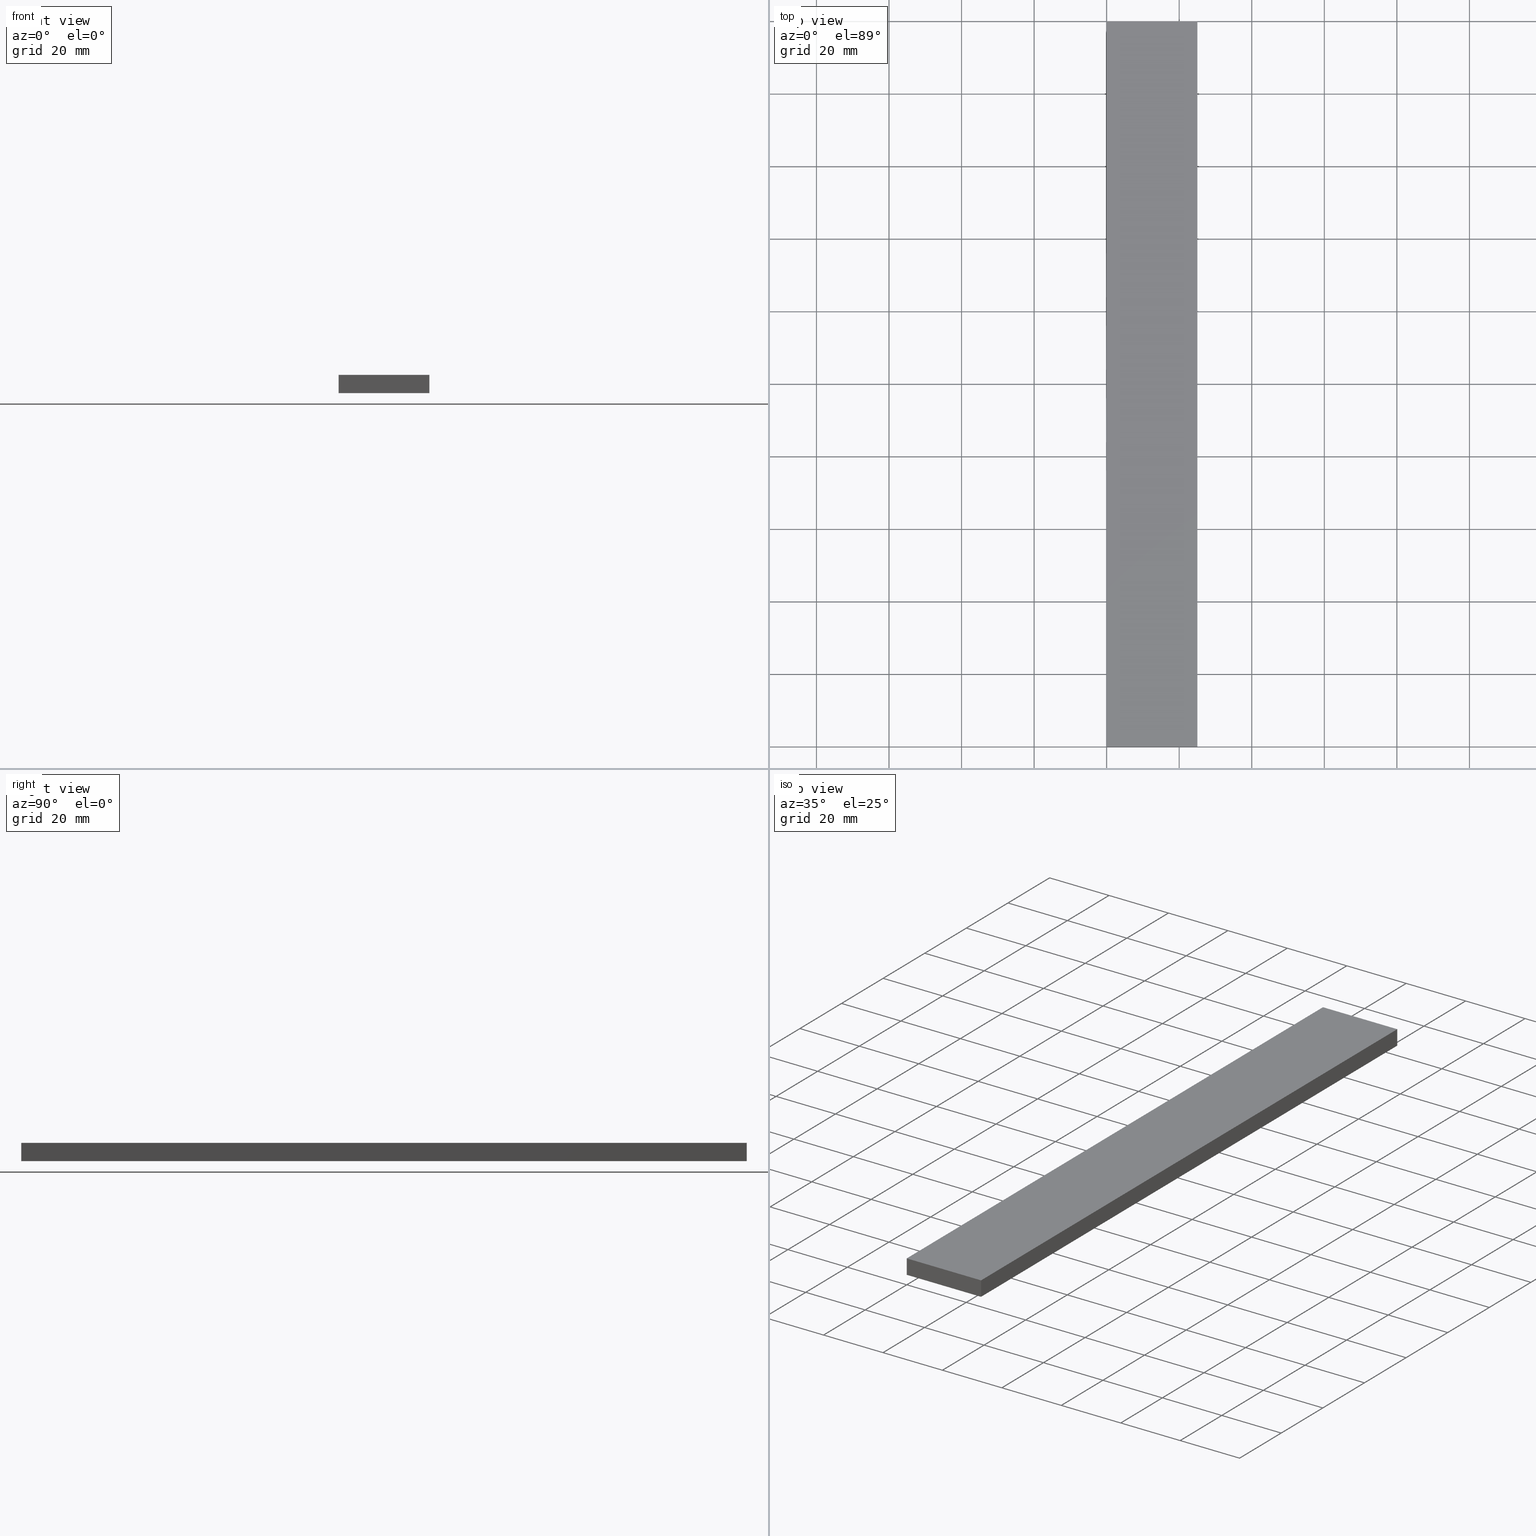
[diagram: canonical four-view strip — front | top / right | iso, engineering-drawing reading convention]
A machine part, canonical four-view strip (front | top / right | iso — engineering-drawing reading convention). The complete STEP part file that produces these views, byte-faithful:
ISO-10303-21;
HEADER;
FILE_DESCRIPTION (( 'STEP AP214' ),
    '1' );
FILE_NAME ('TM_339_5_25.STEP',
    '2016-05-09T04:24:25',
    ( '' ),
    ( '' ),
    'SwSTEP 2.0',
    'SolidWorks 2015',
    '' );
FILE_SCHEMA (( 'AUTOMOTIVE_DESIGN' ));
ENDSEC;

DATA;
#1 = ADVANCED_FACE ( 'NONE', ( #101 ), #121, .T. ) ;
#2 = CARTESIAN_POINT ( 'NONE',  ( 25.00000000000000000, 200.0000000000000000, 0.0000000000000000000 ) ) ;
#3 = AXIS2_PLACEMENT_3D ( 'NONE', #53, #66, #193 ) ;
#4 = CARTESIAN_POINT ( 'NONE',  ( 0.0000000000000000000, 0.0000000000000000000, 0.0000000000000000000 ) ) ;
#5 = ORIENTED_EDGE ( 'NONE', *, *, #182, .T. ) ;
#6 = PLANE ( 'NONE',  #61 ) ;
#7 = AXIS2_PLACEMENT_3D ( 'NONE', #88, #212, #160 ) ;
#8 = ORIENTED_EDGE ( 'NONE', *, *, #178, .F. ) ;
#9 = CARTESIAN_POINT ( 'NONE',  ( 25.00000000000000000, 0.0000000000000000000, 0.0000000000000000000 ) ) ;
#10 = AXIS2_PLACEMENT_3D ( 'NONE', #23, #123, #25 ) ;
#11 = DIRECTION ( 'NONE',  ( -0.0000000000000000000, -0.0000000000000000000, 1.000000000000000000 ) ) ;
#12 = ORIENTED_EDGE ( 'NONE', *, *, #167, .T. ) ;
#13 = PLANE ( 'NONE',  #3 ) ;
#14 = UNCERTAINTY_MEASURE_WITH_UNIT (LENGTH_MEASURE( 1.000000000000000100E-005 ), #97, 'distance_accuracy_value', 'NONE');
#15 = ADVANCED_FACE ( 'NONE', ( #192 ), #211, .T. ) ;
#16 = EDGE_LOOP ( 'NONE', ( #57, #162, #205, #134 ) ) ;
#17 = ADVANCED_FACE ( 'NONE', ( #237 ), #13, .F. ) ;
#18 = FILL_AREA_STYLE_COLOUR ( '', #204 ) ;
#19 =( GEOMETRIC_REPRESENTATION_CONTEXT ( 3 ) GLOBAL_UNCERTAINTY_ASSIGNED_CONTEXT ( ( #36 ) ) GLOBAL_UNIT_ASSIGNED_CONTEXT ( ( #171, #79, #168 ) ) REPRESENTATION_CONTEXT ( 'NONE', 'WORKASPACE' ) );
#20 = PRODUCT_DEFINITION_SHAPE ( 'NONE', 'NONE',  #70 ) ;
#21 = ORIENTED_EDGE ( 'NONE', *, *, #167, .F. ) ;
#22 = CARTESIAN_POINT ( 'NONE',  ( 0.0000000000000000000, 1000.000000000000000, 0.0000000000000000000 ) ) ;
#23 = CARTESIAN_POINT ( 'NONE',  ( 0.0000000000000000000, 0.0000000000000000000, 0.0000000000000000000 ) ) ;
#24 = ADVANCED_FACE ( 'NONE', ( #146 ), #87, .T. ) ;
#25 = DIRECTION ( 'NONE',  ( 1.000000000000000000, 0.0000000000000000000, 0.0000000000000000000 ) ) ;
#26 = APPLICATION_PROTOCOL_DEFINITION ( 'draft international standard', 'automotive_design', 1998, #49 ) ;
#27 = ADVANCED_FACE ( 'NONE', ( #96 ), #6, .T. ) ;
#28 = LINE ( 'NONE', #4, #216 ) ;
#29 = EDGE_CURVE ( 'NONE', #218, #98, #231, .T. ) ;
#30 = CARTESIAN_POINT ( 'NONE',  ( 0.0000000000000000000, 200.0000000000000000, 0.0000000000000000000 ) ) ;
#31 = APPLICATION_CONTEXT ( 'automotive_design' ) ;
#32 = ORIENTED_EDGE ( 'NONE', *, *, #29, .F. ) ;
#33 = UNCERTAINTY_MEASURE_WITH_UNIT (LENGTH_MEASURE( 1.000000000000000100E-005 ), #236, 'distance_accuracy_value', 'NONE');
#34 = CARTESIAN_POINT ( 'NONE',  ( 0.0000000000000000000, 200.0000000000000000, 5.000000000000000000 ) ) ;
#35 = VECTOR ( 'NONE', #11, 1000.000000000000000 ) ;
#36 = UNCERTAINTY_MEASURE_WITH_UNIT (LENGTH_MEASURE( 1.000000000000000100E-005 ), #171, 'distance_accuracy_value', 'NONE');
#37 = AXIS2_PLACEMENT_3D ( 'NONE', #82, #217, #197 ) ;
#38 = DIRECTION ( 'NONE',  ( 1.000000000000000000, 0.0000000000000000000, 0.0000000000000000000 ) ) ;
#39 =( NAMED_UNIT ( * ) PLANE_ANGLE_UNIT ( ) SI_UNIT ( $, .RADIAN. ) );
#40 = VECTOR ( 'NONE', #106, 1000.000000000000000 ) ;
#41 = EDGE_CURVE ( 'NONE', #60, #203, #47, .T. ) ;
#42 = SURFACE_STYLE_FILL_AREA ( #108 ) ;
#43 = ORIENTED_EDGE ( 'NONE', *, *, #120, .T. ) ;
#44 = EDGE_CURVE ( 'NONE', #213, #60, #188, .T. ) ;
#45 = CARTESIAN_POINT ( 'NONE',  ( 0.0000000000000000000, 200.0000000000000000, 0.0000000000000000000 ) ) ;
#46 = CARTESIAN_POINT ( 'NONE',  ( 0.0000000000000000000, 1000.000000000000000, 5.000000000000000000 ) ) ;
#47 = LINE ( 'NONE', #176, #144 ) ;
#48 = CARTESIAN_POINT ( 'NONE',  ( 0.0000000000000000000, 0.0000000000000000000, 5.000000000000000000 ) ) ;
#49 = APPLICATION_CONTEXT ( 'automotive_design' ) ;
#50 = SURFACE_STYLE_FILL_AREA ( #74 ) ;
#51 = CARTESIAN_POINT ( 'NONE',  ( 0.0000000000000000000, 0.0000000000000000000, 0.0000000000000000000 ) ) ;
#52 = PRODUCT_DEFINITION ( 'UNKNOWN', '', #116, #118 ) ;
#53 = CARTESIAN_POINT ( 'NONE',  ( 0.0000000000000000000, 0.0000000000000000000, 0.0000000000000000000 ) ) ;
#54 = LINE ( 'NONE', #209, #35 ) ;
#55 = DIRECTION ( 'NONE',  ( 1.000000000000000000, -0.0000000000000000000, -0.0000000000000000000 ) ) ;
#56 = DIRECTION ( 'NONE',  ( 1.000000000000000000, 0.0000000000000000000, 0.0000000000000000000 ) ) ;
#57 = ORIENTED_EDGE ( 'NONE', *, *, #59, .F. ) ;
#58 = PRODUCT_DEFINITION_SHAPE ( 'NONE', 'NONE',  #52 ) ;
#59 = EDGE_CURVE ( 'NONE', #202, #218, #92, .T. ) ;
#60 = VERTEX_POINT ( 'NONE', #183 ) ;
#61 = AXIS2_PLACEMENT_3D ( 'NONE', #45, #206, #114 ) ;
#62 = EDGE_LOOP ( 'NONE', ( #150, #165, #190, #67 ) ) ;
#63 = CARTESIAN_POINT ( 'NONE',  ( 0.0000000000000000000, 200.0000000000000000, 0.0000000000000000000 ) ) ;
#64 = CARTESIAN_POINT ( 'NONE',  ( 25.00000000000000000, 1000.000000000000000, 0.0000000000000000000 ) ) ;
#65 = EDGE_CURVE ( 'NONE', #218, #142, #54, .T. ) ;
#66 = DIRECTION ( 'NONE',  ( -0.0000000000000000000, 1.000000000000000000, 0.0000000000000000000 ) ) ;
#67 = ORIENTED_EDGE ( 'NONE', *, *, #95, .T. ) ;
#68 = MECHANICAL_DESIGN_GEOMETRIC_PRESENTATION_REPRESENTATION (  '', ( #154 ), #200 ) ;
#69 = DIRECTION ( 'NONE',  ( 0.0000000000000000000, -1.000000000000000000, 0.0000000000000000000 ) ) ;
#70 = PRODUCT_DEFINITION ( 'UNKNOWN', '', #85, #133 ) ;
#71 = VECTOR ( 'NONE', #174, 1000.000000000000000 ) ;
#72 = ORIENTED_EDGE ( 'NONE', *, *, #182, .F. ) ;
#73 = ADVANCED_BREP_SHAPE_REPRESENTATION ( '', ( #226, #109 ), #93 ) ;
#74 = FILL_AREA_STYLE ('',( #18 ) ) ;
#75 = PRESENTATION_STYLE_ASSIGNMENT (( #143 ) ) ;
#76 = VECTOR ( 'NONE', #112, 1000.000000000000000 ) ;
#77 = EDGE_LOOP ( 'NONE', ( #8, #32, #238, #5 ) ) ;
#78 = AXIS2_PLACEMENT_3D ( 'NONE', #46, #179, #126 ) ;
#79 =( NAMED_UNIT ( * ) PLANE_ANGLE_UNIT ( ) SI_UNIT ( $, .RADIAN. ) );
#80 = APPLICATION_PROTOCOL_DEFINITION ( 'draft international standard', 'automotive_design', 1998, #159 ) ;
#81 = VECTOR ( 'NONE', #125, 1000.000000000000000 ) ;
#82 = CARTESIAN_POINT ( 'NONE',  ( 0.0000000000000000000, 0.0000000000000000000, 0.0000000000000000000 ) ) ;
#83 = DIRECTION ( 'NONE',  ( -0.0000000000000000000, -0.0000000000000000000, 1.000000000000000000 ) ) ;
#84 = ITEM_DEFINED_TRANSFORMATION ( 'NONE', 'NONE', #10,  #109 ) ;
#85 = PRODUCT_DEFINITION_FORMATION_WITH_SPECIFIED_SOURCE ( 'ANY', '', #196, .NOT_KNOWN. ) ;
#86 = EDGE_LOOP ( 'NONE', ( #21, #72, #43, #186 ) ) ;
#87 = PLANE ( 'NONE',  #78 ) ;
#88 = CARTESIAN_POINT ( 'NONE',  ( 0.0000000000000000000, 1000.000000000000000, 0.0000000000000000000 ) ) ;
#89 = APPLICATION_PROTOCOL_DEFINITION ( 'draft international standard', 'automotive_design', 1998, #113 ) ;
#90 = SHAPE_REPRESENTATION_RELATIONSHIP ( 'NONE' , 'NONE' ,  #135, #73 ) ;
#91 = CARTESIAN_POINT ( 'NONE',  ( 25.00000000000000000, 1000.000000000000000, 0.0000000000000000000 ) ) ;
#92 = LINE ( 'NONE', #63, #180 ) ;
#93 =( GEOMETRIC_REPRESENTATION_CONTEXT ( 3 ) GLOBAL_UNCERTAINTY_ASSIGNED_CONTEXT ( ( #207 ) ) GLOBAL_UNIT_ASSIGNED_CONTEXT ( ( #151, #138, #220 ) ) REPRESENTATION_CONTEXT ( 'NONE', 'WORKASPACE' ) );
#94 = VECTOR ( 'NONE', #83, 1000.000000000000000 ) ;
#95 = EDGE_CURVE ( 'NONE', #202, #203, #225, .T. ) ;
#96 = FACE_OUTER_BOUND ( 'NONE', #16, .T. ) ;
#97 =( LENGTH_UNIT ( ) NAMED_UNIT ( * ) SI_UNIT ( .MILLI., .METRE. ) );
#98 = VERTEX_POINT ( 'NONE', #9 ) ;
#99 = PRODUCT_DEFINITION_SHAPE ( 'NONE', 'NONE',  #239 ) ;
#100 = PRODUCT_RELATED_PRODUCT_CATEGORY ( 'part', '', ( #196 ) ) ;
#101 = FACE_OUTER_BOUND ( 'NONE', #77, .T. ) ;
#102 = STYLED_ITEM ( 'NONE', ( #158 ), #73 ) ;
#103 = CARTESIAN_POINT ( 'NONE',  ( 25.00000000000000000, 200.0000000000000000, 5.000000000000000000 ) ) ;
#104 = CARTESIAN_POINT ( 'NONE',  ( 25.00000000000000000, 1000.000000000000000, 5.000000000000000000 ) ) ;
#105 =( REPRESENTATION_RELATIONSHIP ('NONE','NONE', #131, #135 ) REPRESENTATION_RELATIONSHIP_WITH_TRANSFORMATION ( #84 )SHAPE_REPRESENTATION_RELATIONSHIP( ) );
#106 = DIRECTION ( 'NONE',  ( 0.0000000000000000000, -1.000000000000000000, 0.0000000000000000000 ) ) ;
#107 = ORIENTED_EDGE ( 'NONE', *, *, #178, .T. ) ;
#108 = FILL_AREA_STYLE ('',( #147 ) ) ;
#109 = AXIS2_PLACEMENT_3D ( 'NONE', #166, #187, #38 ) ;
#110 = AXIS2_PLACEMENT_3D ( 'NONE', #104, #148, #56 ) ;
#111 = ORIENTED_EDGE ( 'NONE', *, *, #155, .T. ) ;
#112 = DIRECTION ( 'NONE',  ( -1.000000000000000000, -0.0000000000000000000, -0.0000000000000000000 ) ) ;
#113 = APPLICATION_CONTEXT ( 'automotive_design' ) ;
#114 = DIRECTION ( 'NONE',  ( 1.000000000000000000, 0.0000000000000000000, 0.0000000000000000000 ) ) ;
#115 = CARTESIAN_POINT ( 'NONE',  ( 0.0000000000000000000, 200.0000000000000000, 5.000000000000000000 ) ) ;
#116 = PRODUCT_DEFINITION_FORMATION_WITH_SPECIFIED_SOURCE ( 'ANY', '', #177, .NOT_KNOWN. ) ;
#117 = EDGE_LOOP ( 'NONE', ( #111, #107, #12, #127 ) ) ;
#118 = PRODUCT_DEFINITION_CONTEXT ( 'detailed design', #49, 'design' ) ;
#119 = CONTEXT_DEPENDENT_SHAPE_REPRESENTATION ( #105, #99 ) ;
#120 = EDGE_CURVE ( 'NONE', #142, #213, #139, .T. ) ;
#121 = PLANE ( 'NONE',  #163 ) ;
#122 = ORIENTED_EDGE ( 'NONE', *, *, #155, .F. ) ;
#123 = DIRECTION ( 'NONE',  ( 0.0000000000000000000, 0.0000000000000000000, 1.000000000000000000 ) ) ;
#124 = DIRECTION ( 'NONE',  ( 0.0000000000000000000, 0.0000000000000000000, 1.000000000000000000 ) ) ;
#125 = DIRECTION ( 'NONE',  ( 0.0000000000000000000, -1.000000000000000000, 0.0000000000000000000 ) ) ;
#126 = DIRECTION ( 'NONE',  ( 0.0000000000000000000, 0.0000000000000000000, 1.000000000000000000 ) ) ;
#127 = ORIENTED_EDGE ( 'NONE', *, *, #41, .T. ) ;
#128 = DIRECTION ( 'NONE',  ( -0.0000000000000000000, -0.0000000000000000000, -1.000000000000000000 ) ) ;
#129 = VECTOR ( 'NONE', #170, 1000.000000000000000 ) ;
#130 = CARTESIAN_POINT ( 'NONE',  ( 25.00000000000000000, 0.0000000000000000000, 0.0000000000000000000 ) ) ;
#131 = SHAPE_REPRESENTATION ( 'TM_339_5_25', ( #37, #10 ), #19 ) ;
#132 = SHAPE_DEFINITION_REPRESENTATION ( #58, #135 ) ;
#133 = PRODUCT_DEFINITION_CONTEXT ( 'detailed design', #159, 'design' ) ;
#134 = ORIENTED_EDGE ( 'NONE', *, *, #65, .F. ) ;
#135 = SHAPE_REPRESENTATION ( 'rubber foam', ( #109 ), #93 ) ;
#136 = CARTESIAN_POINT ( 'NONE',  ( 25.00000000000000000, 0.0000000000000000000, 5.000000000000000000 ) ) ;
#137 = FACE_OUTER_BOUND ( 'NONE', #86, .T. ) ;
#138 =( NAMED_UNIT ( * ) PLANE_ANGLE_UNIT ( ) SI_UNIT ( $, .RADIAN. ) );
#139 = LINE ( 'NONE', #115, #129 ) ;
#140 = SURFACE_STYLE_USAGE ( .BOTH. , #227 ) ;
#141 = LINE ( 'NONE', #157, #71 ) ;
#142 = VERTEX_POINT ( 'NONE', #103 ) ;
#143 = SURFACE_STYLE_USAGE ( .BOTH. , #215 ) ;
#144 = VECTOR ( 'NONE', #128, 1000.000000000000000 ) ;
#145 = DIRECTION ( 'NONE',  ( 0.0000000000000000000, 0.0000000000000000000, -1.000000000000000000 ) ) ;
#146 = FACE_OUTER_BOUND ( 'NONE', #62, .T. ) ;
#147 = FILL_AREA_STYLE_COLOUR ( '', #184 ) ;
#148 = DIRECTION ( 'NONE',  ( 0.0000000000000000000, 0.0000000000000000000, 1.000000000000000000 ) ) ;
#149 =( NAMED_UNIT ( * ) SI_UNIT ( $, .STERADIAN. ) SOLID_ANGLE_UNIT ( ) );
#150 = ORIENTED_EDGE ( 'NONE', *, *, #41, .F. ) ;
#151 =( LENGTH_UNIT ( ) NAMED_UNIT ( * ) SI_UNIT ( .MILLI., .METRE. ) );
#152 =( NAMED_UNIT ( * ) PLANE_ANGLE_UNIT ( ) SI_UNIT ( $, .RADIAN. ) );
#153 = EDGE_LOOP ( 'NONE', ( #122, #195, #198, #156 ) ) ;
#154 = STYLED_ITEM ( 'NONE', ( #75 ), #226 ) ;
#155 = EDGE_CURVE ( 'NONE', #203, #98, #28, .T. ) ;
#156 = ORIENTED_EDGE ( 'NONE', *, *, #29, .T. ) ;
#157 = CARTESIAN_POINT ( 'NONE',  ( 25.00000000000000000, 1000.000000000000000, 5.000000000000000000 ) ) ;
#158 = PRESENTATION_STYLE_ASSIGNMENT (( #140 ) ) ;
#159 = APPLICATION_CONTEXT ( 'automotive_design' ) ;
#160 = DIRECTION ( 'NONE',  ( -1.000000000000000000, 0.0000000000000000000, 0.0000000000000000000 ) ) ;
#161 = CARTESIAN_POINT ( 'NONE',  ( 0.0000000000000000000, 0.0000000000000000000, 0.0000000000000000000 ) ) ;
#162 = ORIENTED_EDGE ( 'NONE', *, *, #214, .F. ) ;
#163 = AXIS2_PLACEMENT_3D ( 'NONE', #64, #229, #145 ) ;
#164 = PRODUCT_RELATED_PRODUCT_CATEGORY ( 'part', '', ( #177 ) ) ;
#165 = ORIENTED_EDGE ( 'NONE', *, *, #44, .F. ) ;
#166 = CARTESIAN_POINT ( 'NONE',  ( 0.0000000000000000000, 0.0000000000000000000, 0.0000000000000000000 ) ) ;
#167 = EDGE_CURVE ( 'NONE', #228, #60, #221, .T. ) ;
#168 =( NAMED_UNIT ( * ) SI_UNIT ( $, .STERADIAN. ) SOLID_ANGLE_UNIT ( ) );
#169 = PRESENTATION_LAYER_ASSIGNMENT (  '', '', ( #154 ) ) ;
#170 = DIRECTION ( 'NONE',  ( -1.000000000000000000, -0.0000000000000000000, -0.0000000000000000000 ) ) ;
#171 =( LENGTH_UNIT ( ) NAMED_UNIT ( * ) SI_UNIT ( .MILLI., .METRE. ) );
#172 = PRODUCT_CONTEXT ( 'NONE', #113, 'mechanical' ) ;
#173 = LINE ( 'NONE', #130, #94 ) ;
#174 = DIRECTION ( 'NONE',  ( 0.0000000000000000000, -1.000000000000000000, 0.0000000000000000000 ) ) ;
#175 = PRESENTATION_LAYER_ASSIGNMENT (  '', '', ( #102 ) ) ;
#176 = CARTESIAN_POINT ( 'NONE',  ( 0.0000000000000000000, 0.0000000000000000000, 0.0000000000000000000 ) ) ;
#177 = PRODUCT ( 'rubber foam', 'rubber foam', '', ( #194 ) ) ;
#178 = EDGE_CURVE ( 'NONE', #98, #228, #173, .T. ) ;
#179 = DIRECTION ( 'NONE',  ( -1.000000000000000000, 0.0000000000000000000, 0.0000000000000000000 ) ) ;
#180 = VECTOR ( 'NONE', #55, 1000.000000000000000 ) ;
#181 = CARTESIAN_POINT ( 'NONE',  ( 0.0000000000000000000, 1000.000000000000000, 5.000000000000000000 ) ) ;
#182 = EDGE_CURVE ( 'NONE', #142, #228, #141, .T. ) ;
#183 = CARTESIAN_POINT ( 'NONE',  ( 0.0000000000000000000, 0.0000000000000000000, 5.000000000000000000 ) ) ;
#184 = COLOUR_RGB ( '',0.7921568627450980000, 0.8196078431372548800, 0.9333333333333333500 ) ;
#185 = SHAPE_DEFINITION_REPRESENTATION ( #20, #131 ) ;
#186 = ORIENTED_EDGE ( 'NONE', *, *, #44, .T. ) ;
#187 = DIRECTION ( 'NONE',  ( 0.0000000000000000000, 0.0000000000000000000, 1.000000000000000000 ) ) ;
#188 = LINE ( 'NONE', #181, #40 ) ;
#189 = MECHANICAL_DESIGN_GEOMETRIC_PRESENTATION_REPRESENTATION (  '', ( #102 ), #201 ) ;
#190 = ORIENTED_EDGE ( 'NONE', *, *, #214, .T. ) ;
#191 = CARTESIAN_POINT ( 'NONE',  ( 0.0000000000000000000, 200.0000000000000000, 0.0000000000000000000 ) ) ;
#192 = FACE_OUTER_BOUND ( 'NONE', #153, .T. ) ;
#193 = DIRECTION ( 'NONE',  ( 1.000000000000000000, 0.0000000000000000000, 0.0000000000000000000 ) ) ;
#194 = PRODUCT_CONTEXT ( 'NONE', #31, 'mechanical' ) ;
#195 = ORIENTED_EDGE ( 'NONE', *, *, #95, .F. ) ;
#196 = PRODUCT ( 'TM_339_5_25', 'TM_339_5_25', '', ( #172 ) ) ;
#197 = DIRECTION ( 'NONE',  ( 1.000000000000000000, 0.0000000000000000000, 0.0000000000000000000 ) ) ;
#198 = ORIENTED_EDGE ( 'NONE', *, *, #59, .T. ) ;
#199 = PLANE ( 'NONE',  #110 ) ;
#200 =( GEOMETRIC_REPRESENTATION_CONTEXT ( 3 ) GLOBAL_UNCERTAINTY_ASSIGNED_CONTEXT ( ( #33 ) ) GLOBAL_UNIT_ASSIGNED_CONTEXT ( ( #236, #39, #149 ) ) REPRESENTATION_CONTEXT ( 'NONE', 'WORKASPACE' ) );
#201 =( GEOMETRIC_REPRESENTATION_CONTEXT ( 3 ) GLOBAL_UNCERTAINTY_ASSIGNED_CONTEXT ( ( #14 ) ) GLOBAL_UNIT_ASSIGNED_CONTEXT ( ( #97, #152, #222 ) ) REPRESENTATION_CONTEXT ( 'NONE', 'WORKASPACE' ) );
#202 = VERTEX_POINT ( 'NONE', #191 ) ;
#203 = VERTEX_POINT ( 'NONE', #161 ) ;
#204 = COLOUR_RGB ( '',0.7921568627450980000, 0.8196078431372548800, 0.9333333333333333500 ) ;
#205 = ORIENTED_EDGE ( 'NONE', *, *, #120, .F. ) ;
#206 = DIRECTION ( 'NONE',  ( -0.0000000000000000000, 1.000000000000000000, 0.0000000000000000000 ) ) ;
#207 = UNCERTAINTY_MEASURE_WITH_UNIT (LENGTH_MEASURE( 1.000000000000000100E-005 ), #151, 'distance_accuracy_value', 'NONE');
#208 = APPLICATION_PROTOCOL_DEFINITION ( 'draft international standard', 'automotive_design', 1998, #31 ) ;
#209 = CARTESIAN_POINT ( 'NONE',  ( 25.00000000000000000, 200.0000000000000000, 0.0000000000000000000 ) ) ;
#210 = DIRECTION ( 'NONE',  ( 1.000000000000000000, 0.0000000000000000000, 0.0000000000000000000 ) ) ;
#211 = PLANE ( 'NONE',  #7 ) ;
#212 = DIRECTION ( 'NONE',  ( 0.0000000000000000000, 0.0000000000000000000, -1.000000000000000000 ) ) ;
#213 = VERTEX_POINT ( 'NONE', #34 ) ;
#214 = EDGE_CURVE ( 'NONE', #213, #202, #233, .T. ) ;
#215 = SURFACE_SIDE_STYLE ('',( #42 ) ) ;
#216 = VECTOR ( 'NONE', #230, 1000.000000000000000 ) ;
#217 = DIRECTION ( 'NONE',  ( 0.0000000000000000000, 0.0000000000000000000, 1.000000000000000000 ) ) ;
#218 = VERTEX_POINT ( 'NONE', #2 ) ;
#219 = VECTOR ( 'NONE', #232, 1000.000000000000000 ) ;
#220 =( NAMED_UNIT ( * ) SI_UNIT ( $, .STERADIAN. ) SOLID_ANGLE_UNIT ( ) );
#221 = LINE ( 'NONE', #48, #76 ) ;
#222 =( NAMED_UNIT ( * ) SI_UNIT ( $, .STERADIAN. ) SOLID_ANGLE_UNIT ( ) );
#223 = CLOSED_SHELL ( 'NONE', ( #15, #1, #224, #24, #27, #17 ) ) ;
#224 = ADVANCED_FACE ( 'NONE', ( #137 ), #199, .T. ) ;
#225 = LINE ( 'NONE', #22, #81 ) ;
#226 = MANIFOLD_SOLID_BREP ( '���߰�1', #223 ) ;
#227 = SURFACE_SIDE_STYLE ('',( #50 ) ) ;
#228 = VERTEX_POINT ( 'NONE', #136 ) ;
#229 = DIRECTION ( 'NONE',  ( 1.000000000000000000, 0.0000000000000000000, 0.0000000000000000000 ) ) ;
#230 = DIRECTION ( 'NONE',  ( 1.000000000000000000, -0.0000000000000000000, -0.0000000000000000000 ) ) ;
#231 = LINE ( 'NONE', #91, #235 ) ;
#232 = DIRECTION ( 'NONE',  ( -0.0000000000000000000, -0.0000000000000000000, -1.000000000000000000 ) ) ;
#233 = LINE ( 'NONE', #30, #219 ) ;
#234 = AXIS2_PLACEMENT_3D ( 'NONE', #51, #124, #210 ) ;
#235 = VECTOR ( 'NONE', #69, 1000.000000000000000 ) ;
#236 =( LENGTH_UNIT ( ) NAMED_UNIT ( * ) SI_UNIT ( .MILLI., .METRE. ) );
#237 = FACE_OUTER_BOUND ( 'NONE', #117, .T. ) ;
#238 = ORIENTED_EDGE ( 'NONE', *, *, #65, .T. ) ;
#239 = NEXT_ASSEMBLY_USAGE_OCCURRENCE ( 'NAUO1', ' ', ' ', #70, #52, $ ) ;
ENDSEC;
END-ISO-10303-21;
